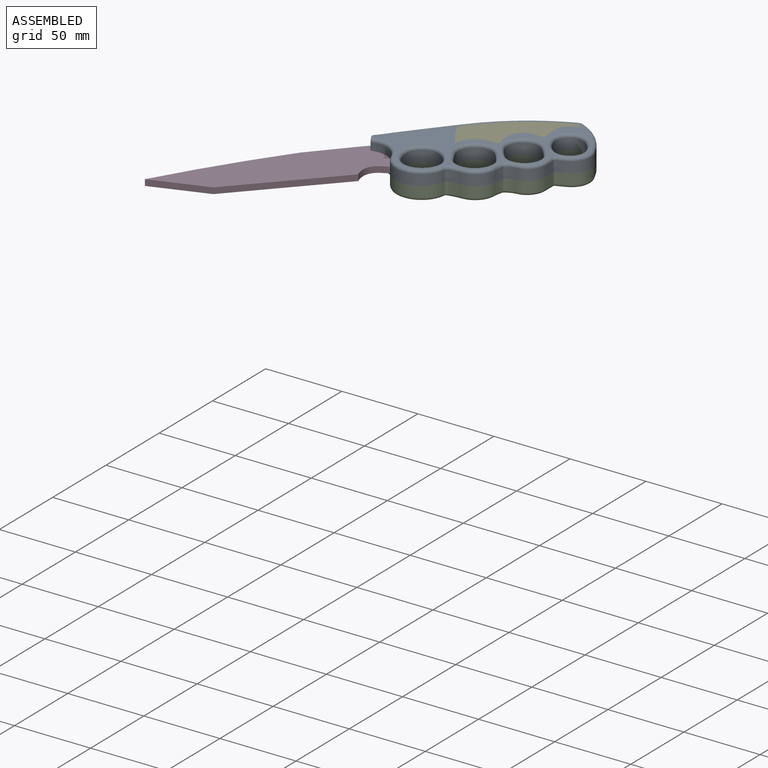
[diagram: assembled view]
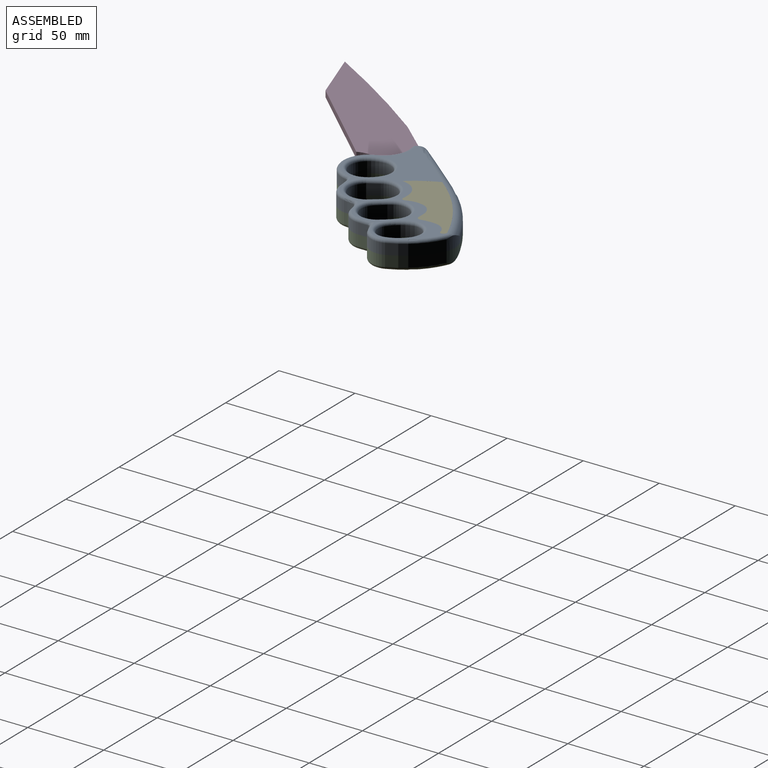
[diagram: assembled view, second angle]
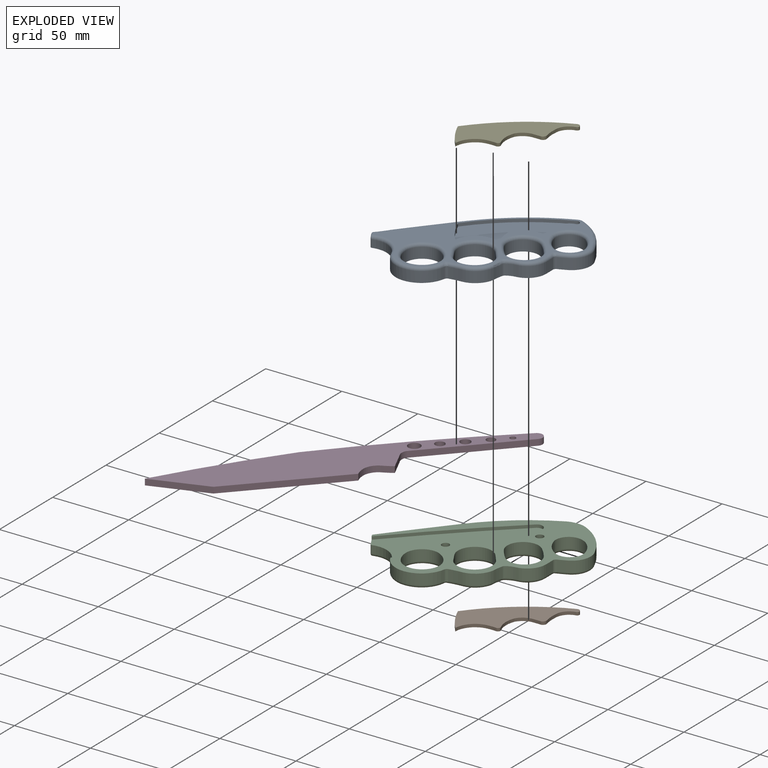
[diagram: exploded view]
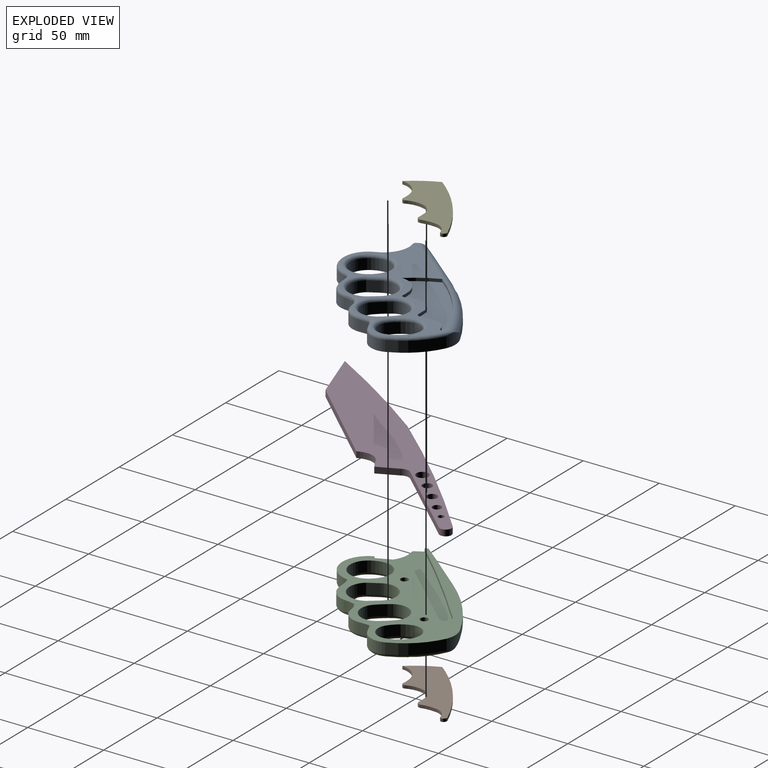
[diagram: exploded view, second angle]
ASSEMBLY  parts=5 mates=4
PART A: 103 faces, bbox 114.8x117.5x9.1 mm
  f0: plane 8x6.28mm, normal (-0.87,-0.5,0), area 42.2mm2, adj f47,f92,f93,f94,f95,f96,f97,f98
  f1: cylinder r=17.04mm len=32.74mm, axis (0,0,-1), area 310.1mm2, adj f9,f47,f52,f81,f87,f93
  f2: cylinder r=72.89mm len=7mm, axis (0,0,-1), area 35.9mm2, adj f3,f47,f58,f85
  f3: cylinder r=12.47mm len=17.98mm, axis (0,0,-1), area 151.7mm2, adj f2,f4,f47,f77
  f4: cylinder r=45.34mm len=22.87mm, axis (0,0,-1), area 227.4mm2, adj f3,f5,f47,f78
  f5: cylinder r=15.76mm len=12.4mm, axis (0,0,-1), area 84.9mm2, adj f4,f6,f47,f50,f78,f79
  f6: cylinder r=134.82mm len=44.95mm, axis (0,0,-1), area 230.9mm2, adj f5,f7,f47,f50
  f7: plane 17.66x14.51mm, normal (-0.77,0.63,0), area 91.4mm2, adj f6,f8,f47,f49
  f8: cylinder r=1203.37mm len=20.31mm, axis (0,0,-1), area 104.2mm2, adj f7,f47,f48,f94
  f9: cylinder r=16.13mm len=19.45mm, axis (0,0,-1), area 119.7mm2, adj f1,f51,f93,f98
  f10: cylinder r=56.96mm len=8.55mm, axis (0,0,-1), area 60.4mm2, adj f11,f47,f53,f81
  f11: cylinder r=13.8mm len=12.32mm, axis (0,0,-1), area 127.5mm2, adj f10,f12,f47,f54
  f12: cylinder r=33.82mm len=7mm, axis (0,0,-1), area 48.5mm2, adj f11,f47,f55,f83
  f13: cylinder r=12.96mm len=7mm, axis (0,0,-1), area 42.4mm2, adj f14,f47,f56,f83
  f14: cylinder r=12.42mm len=12.36mm, axis (0,0,-1), area 128.6mm2, adj f13,f45,f47,f57
  f15: cylinder r=20.1mm len=11.96mm, axis (0,0,-1), area 102.3mm2, adj f16,f40,f47,f74
  f16: cylinder r=8.81mm len=14.04mm, axis (0,0,-1), area 145.6mm2, adj f15,f17,f47,f72
  f17: cylinder r=20.38mm len=12.6mm, axis (0,0,-1), area 109.7mm2, adj f16,f18,f47,f73
  f18: cylinder r=8.67mm len=10.5mm, axis (0,0,-1), area 115.5mm2, adj f17,f40,f47,f75
  f19: cylinder r=27.49mm len=6.69mm, axis (0,0,-1), area 13.4mm2, adj f20,f41,f46,f80
  f20: cylinder r=13.39mm len=12.7mm, axis (0,0,-1), area 36.4mm2, adj f19,f21,f46,f80
  f21: cylinder r=69.06mm len=18.4mm, axis (0,0,-1), area 43.3mm2, adj f20,f22,f46,f80
  f22: cylinder r=124.67mm len=51.14mm, axis (0,0,-1), area 130.3mm2, adj f21,f23,f46,f80
  f23: cylinder r=2.26mm len=2.72mm, axis (0,0,-1), area 7mm2, adj f22,f24,f46,f80
  f24: cylinder r=1.54mm len=2mm, axis (0,0,-1), area 4.6mm2, adj f23,f25,f46,f80
  f25: cylinder r=9.06mm len=9.05mm, axis (0,0,-1), area 25.8mm2, adj f24,f26,f46,f80
  f26: cylinder r=25.48mm len=8.9mm, axis (0,0,-1), area 17.9mm2, adj f25,f27,f46,f80
  f27: cylinder r=2.34mm len=2.65mm, axis (0,0,-1), area 7.4mm2, adj f26,f28,f46,f80
  f28: cylinder r=64.64mm len=4.69mm, axis (0,0,-1), area 9.4mm2, adj f27,f29,f46,f80
  f29: cylinder r=10.14mm len=9.11mm, axis (0,0,-1), area 22mm2, adj f28,f30,f46,f80
  f30: cylinder r=17.13mm len=13.54mm, axis (0,0,-1), area 27.8mm2, adj f29,f41,f46,f80
  f31: cylinder r=15.74mm len=8.66mm, axis (0,0,-1), area 79.2mm2, adj f32,f42,f47,f61
  f32: cylinder r=11.55mm len=20.78mm, axis (0,0,-1), area 222.3mm2, adj f31,f33,f47,f60
  f33: cylinder r=16.3mm len=10.28mm, axis (0,0,-1), area 77.3mm2, adj f32,f42,f47,f62
  f34: cylinder r=38.33mm len=7mm, axis (0,0,-1), area 60.3mm2, adj f35,f43,f47,f67
  f35: cylinder r=10.48mm len=18.42mm, axis (0,0,-1), area 233.4mm2, adj f34,f36,f47,f65
  f36: cylinder r=46.66mm len=7.68mm, axis (0,0,-1), area 68.8mm2, adj f35,f43,f47,f64
  f37: plane 7x6.11mm, normal (-0.79,-0.61,0), area 54.2mm2, adj f38,f44,f47,f69
  f38: cylinder r=11.58mm len=20.67mm, axis (0,0,-1), area 244.4mm2, adj f37,f39,f47,f68
  f39: plane 7x6.81mm, normal (0.86,0.5,0), area 55.1mm2, adj f38,f44,f47,f70
  f40: cylinder r=13.87mm len=7mm, axis (0,0,-1), area 32.7mm2, adj f15,f18,f47,f76
  f41: cylinder r=1.62mm len=2mm, axis (0,0,-1), area 6.1mm2, adj f19,f30,f46,f80
  f42: cylinder r=10.73mm len=16.96mm, axis (0,0,-1), area 161mm2, adj f31,f33,f47,f63
  f43: cylinder r=10.31mm len=17.45mm, axis (0,0,-1), area 207.3mm2, adj f34,f36,f47,f66
  f44: cylinder r=11.05mm len=19.78mm, axis (0,0,-1), area 233.7mm2, adj f37,f39,f47,f71
  f45: cylinder r=383.02mm len=7mm, axis (0,0,-1), area 45.3mm2, adj f14,f47,f59,f85
  f46: plane 107.07x99.18mm, normal (0,0,1), area 1625.3mm2, adj f19,f20,f21,f22,f23,f24,f25,f26
  f47: plane 112.21x103.5mm, normal (0,0,-1), area 3257.6mm2, adj f0,f1,f2,f3,f4,f5,f6,f7
  f48: torus R=1198.37mm, axis (0,0,1), area 210.7mm2, adj f8,f46,f49,f95
  f49: cylinder r=5mm len=20.83mm, axis (0.63,0.77,0), area 179.5mm2, adj f7,f46,f48,f50
  f50: torus R=129.82mm, axis (0,0,1), area 488.6mm2, adj f5,f6,f46,f49,f79
  f51: torus R=18.13mm, axis (0,0,1), area 79mm2, adj f9,f46,f52,f97
  f52: torus R=15.04mm, axis (0,0,1), area 138.3mm2, adj f1,f46,f51,f82
  f53: torus R=58.96mm, axis (0,0,1), area 32mm2, adj f10,f46,f54,f82
  f54: torus R=11.8mm, axis (0,0,1), area 54mm2, adj f11,f46,f53,f55
  f55: torus R=35.82mm, axis (0,0,1), area 24.3mm2, adj f12,f46,f54,f84
  f56: torus R=14.96mm, axis (0,0,1), area 22.5mm2, adj f13,f46,f57,f84
  f57: torus R=10.42mm, axis (0,0,1), area 54.4mm2, adj f14,f46,f56,f59
  f58: torus R=70.89mm, axis (0,0,1), area 20.5mm2, adj f2,f46,f77,f86
  f59: torus R=381.02mm, axis (0,0,1), area 24.8mm2, adj f45,f46,f57,f86
  f60: torus R=13.55mm, axis (0,0,1), area 106.1mm2, adj f32,f46,f61,f62
  f61: torus R=17.74mm, axis (0,0,1), area 37.2mm2, adj f31,f46,f60,f63
  f62: torus R=18.3mm, axis (0,0,1), area 36.3mm2, adj f33,f46,f60,f63
  f63: torus R=12.73mm, axis (0,0,1), area 77.1mm2, adj f42,f46,f61,f62
  f64: torus R=48.66mm, axis (0,0,1), area 31.3mm2, adj f36,f46,f65,f66
  f65: torus R=12.48mm, axis (0,0,1), area 111.7mm2, adj f35,f46,f64,f67
  f66: torus R=12.31mm, axis (0,0,1), area 99.6mm2, adj f43,f46,f64,f67
  f67: torus R=40.33mm, axis (0,0,1), area 27.3mm2, adj f34,f46,f65,f66
  f68: torus R=13.58mm, axis (0,0,1), area 117mm2, adj f38,f46,f69,f70
  f69: cylinder r=2mm len=7.43mm, axis (-0.61,0.79,0), area 24.5mm2, adj f37,f46,f68,f71
  f70: cylinder r=2mm len=7.93mm, axis (0.5,-0.86,0), area 24.9mm2, adj f39,f46,f68,f71
  f71: torus R=13.05mm, axis (0,0,1), area 111.8mm2, adj f44,f46,f69,f70
  f72: torus R=10.81mm, axis (0,0,1), area 70.7mm2, adj f16,f46,f73,f74
  f73: torus R=22.38mm, axis (0,0,1), area 51.1mm2, adj f17,f46,f72,f75
  f74: torus R=22.1mm, axis (0,0,1), area 47.8mm2, adj f15,f46,f72,f76
  f75: torus R=10.67mm, axis (0,0,1), area 56.3mm2, adj f18,f46,f73,f76
  f76: torus R=15.87mm, axis (0,0,1), area 15.6mm2, adj f40,f46,f74,f75
  f77: torus R=10.47mm, axis (0,0,1), area 64.5mm2, adj f3,f46,f58,f78
  f78: torus R=43.34mm, axis (0,0,1), area 105.8mm2, adj f4,f5,f46,f77,f79
  f79: bspline ~4.69x3.44mm, area 4.2mm2, adj f5,f50,f78
  f80: plane 57.66x53.95mm, normal (0,0,1), area 1040.1mm2, adj f19,f20,f21,f22,f23,f24,f25,f26
  f81: cylinder r=2mm len=7mm, axis (0,0,-1), area 16.8mm2, adj f1,f10,f47,f82
  f82: bspline ~3.34x2.91mm, area 3.3mm2, adj f52,f53,f81
  f83: cylinder r=2mm len=7mm, axis (0,0,1), area 10.3mm2, adj f12,f13,f47,f84
  f84: bspline ~2.39x2.36mm, area 1.8mm2, adj f55,f56,f83
  f85: cylinder r=2mm len=7mm, axis (0,0,1), area 17mm2, adj f2,f45,f47,f86
  f86: bspline ~3.33x2.81mm, area 3.3mm2, adj f58,f59,f85
  f87: plane 2x1.96mm, normal (-0.52,0.86,0), area 4.6mm2, adj f1,f47,f88,f93
  f88: plane 12.92x5.89mm, normal (-0.91,-0.41,0), area 28.4mm2, adj f47,f87,f89,f93
  f89: cylinder r=6mm len=6.56mm, axis (0,0,-1), area 13.9mm2, adj f47,f88,f90,f93
  f90: plane 53.11x49.06mm, normal (-0.73,0.68,0), area 144.6mm2, adj f47,f89,f91,f93
  f91: cylinder r=3.82mm len=6.57mm, axis (0,0,-1), area 24.1mm2, adj f47,f90,f92,f93
  f92: cylinder r=1040.92mm len=63.66mm, axis (0,0,-1), area 179.2mm2, adj f0,f47,f91,f93
  f93: plane 80.35x70.16mm, normal (0,0,-1), area 1023.1mm2, adj f0,f1,f9,f87,f88,f89,f90,f91
  f94: cylinder r=1mm len=4mm, axis (0,0,-1), area 4.7mm2, adj f0,f8,f47,f95
  f95: bspline ~6.08x5.95mm, area 9.9mm2, adj f0,f48,f94,f96
  f96: cylinder r=1mm len=2.14mm, axis (-0.5,0.87,0), area 3mm2, adj f0,f46,f95,f97
  f97: bspline ~2.49x2.46mm, area 3.6mm2, adj f0,f51,f96,f98
  f98: cylinder r=1mm len=5mm, axis (0,0,-1), area 6.6mm2, adj f0,f9,f93,f97
  f99: cylinder r=2.5mm len=6mm, axis (0,0,-1), area 94.2mm2, adj f47,f100
  f100: plane 5x5mm, normal (0,0,-1), area 19.6mm2, adj f99
  f101: cylinder r=2.5mm len=6mm, axis (0,0,-1), area 94.2mm2, adj f47,f102
  f102: plane 5x5mm, normal (0,0,-1), area 19.6mm2, adj f101
PART B: 15 faces, bbox 54x57.7x2 mm
  f0: cylinder r=13.39mm len=12.7mm, axis (0,0,1), area 36.4mm2, adj f1,f12,f13,f14
  f1: cylinder r=69.06mm len=18.4mm, axis (0,0,1), area 43.3mm2, adj f0,f2,f13,f14
  f2: cylinder r=124.67mm len=51.14mm, axis (0,0,1), area 130.3mm2, adj f1,f3,f13,f14
  f3: cylinder r=2.26mm len=2.72mm, axis (0,0,1), area 7mm2, adj f2,f4,f13,f14
  f4: cylinder r=1.54mm len=2mm, axis (0,0,1), area 4.6mm2, adj f3,f5,f13,f14
  f5: cylinder r=9.06mm len=9.05mm, axis (0,0,1), area 25.8mm2, adj f4,f6,f13,f14
  f6: cylinder r=25.48mm len=8.9mm, axis (0,0,1), area 17.9mm2, adj f5,f7,f13,f14
  f7: cylinder r=2.34mm len=2.65mm, axis (0,0,1), area 7.4mm2, adj f6,f8,f13,f14
  f8: cylinder r=64.64mm len=4.69mm, axis (0,0,1), area 9.4mm2, adj f7,f9,f13,f14
  f9: cylinder r=10.14mm len=9.11mm, axis (0,0,1), area 22mm2, adj f8,f10,f13,f14
  f10: cylinder r=17.13mm len=13.54mm, axis (0,0,1), area 27.8mm2, adj f9,f11,f13,f14
  f11: cylinder r=1.62mm len=2mm, axis (0,0,1), area 6.1mm2, adj f10,f12,f13,f14
  f12: cylinder r=27.49mm len=6.69mm, axis (0,0,1), area 13.4mm2, adj f0,f11,f13,f14
  f13: plane 57.66x53.95mm, normal (0,0,-1), area 1040.1mm2, adj f0,f1,f2,f3,f4,f5,f6,f7
  f14: plane 57.66x53.95mm, normal (0,0,1), area 1040.1mm2, adj f0,f1,f2,f3,f4,f5,f6,f7
PART C: 103 faces, bbox 114.8x117.5x9.1 mm
  f0: cylinder r=16.13mm len=19.45mm, axis (0,0,1), area 119.7mm2, adj f16,f49,f64,f98
  f1: cylinder r=27.49mm len=6.69mm, axis (0,0,1), area 13.4mm2, adj f2,f41,f46,f48
  f2: cylinder r=13.39mm len=12.7mm, axis (0,0,1), area 36.4mm2, adj f1,f26,f46,f48
  f3: cylinder r=9.06mm len=9.05mm, axis (0,0,1), area 25.8mm2, adj f4,f29,f46,f48
  f4: cylinder r=25.48mm len=8.9mm, axis (0,0,1), area 17.9mm2, adj f3,f30,f46,f48
  f5: cylinder r=64.64mm len=4.69mm, axis (0,0,1), area 9.4mm2, adj f6,f30,f46,f48
  f6: cylinder r=10.14mm len=9.11mm, axis (0,0,1), area 22mm2, adj f5,f7,f46,f48
  f7: cylinder r=17.13mm len=13.54mm, axis (0,0,1), area 27.8mm2, adj f6,f41,f46,f48
  f8: cylinder r=72.89mm len=7mm, axis (0,0,1), area 35.9mm2, adj f9,f47,f75,f92
  f9: cylinder r=12.47mm len=17.98mm, axis (0,0,1), area 151.7mm2, adj f8,f10,f47,f74
  f10: cylinder r=45.34mm len=22.87mm, axis (0,0,1), area 227.4mm2, adj f9,f11,f47,f72
  f11: cylinder r=15.76mm len=12.4mm, axis (0,0,1), area 84.9mm2, adj f10,f12,f47,f58,f70,f72
  f12: cylinder r=134.82mm len=44.95mm, axis (0,0,1), area 230.9mm2, adj f11,f13,f47,f58
  f13: plane 17.66x14.51mm, normal (-0.77,0.63,0), area 91.4mm2, adj f12,f14,f47,f57
  f14: cylinder r=1203.37mm len=20.31mm, axis (0,0,1), area 104.2mm2, adj f13,f47,f56,f94
  f15: plane 8x6.28mm, normal (-0.87,-0.5,0), area 42.2mm2, adj f47,f49,f50,f94,f95,f96,f97,f98
  f16: cylinder r=17.04mm len=32.74mm, axis (0,0,1), area 310.1mm2, adj f0,f47,f49,f51,f65,f88
  f17: cylinder r=56.96mm len=8.55mm, axis (0,0,1), area 60.4mm2, adj f18,f47,f66,f88
  f18: cylinder r=13.8mm len=12.32mm, axis (0,0,1), area 127.5mm2, adj f17,f19,f47,f67
  f19: cylinder r=33.82mm len=7mm, axis (0,0,1), area 48.5mm2, adj f18,f47,f68,f90
  f20: cylinder r=12.96mm len=7mm, axis (0,0,1), area 42.4mm2, adj f21,f47,f69,f90
  f21: cylinder r=12.42mm len=12.36mm, axis (0,0,1), area 128.6mm2, adj f20,f45,f47,f71
  f22: cylinder r=20.1mm len=11.96mm, axis (0,0,1), area 102.3mm2, adj f23,f40,f47,f61
  f23: cylinder r=8.81mm len=14.04mm, axis (0,0,1), area 145.6mm2, adj f22,f24,f47,f59
  f24: cylinder r=20.38mm len=12.6mm, axis (0,0,1), area 109.7mm2, adj f23,f25,f47,f60
  f25: cylinder r=8.67mm len=10.5mm, axis (0,0,1), area 115.5mm2, adj f24,f40,f47,f62
  f26: cylinder r=69.06mm len=18.4mm, axis (0,0,1), area 43.3mm2, adj f2,f27,f46,f48
  f27: cylinder r=124.67mm len=51.14mm, axis (0,0,1), area 130.3mm2, adj f26,f28,f46,f48
  f28: cylinder r=2.26mm len=2.72mm, axis (0,0,1), area 7mm2, adj f27,f29,f46,f48
  f29: cylinder r=1.54mm len=2mm, axis (0,0,1), area 4.6mm2, adj f3,f28,f46,f48
  f30: cylinder r=2.34mm len=2.65mm, axis (0,0,1), area 7.4mm2, adj f4,f5,f46,f48
  f31: cylinder r=15.74mm len=8.66mm, axis (0,0,1), area 79.2mm2, adj f32,f42,f47,f77
  f32: cylinder r=11.55mm len=20.78mm, axis (0,0,1), area 222.3mm2, adj f31,f33,f47,f76
  f33: cylinder r=16.3mm len=10.28mm, axis (0,0,1), area 77.3mm2, adj f32,f42,f47,f78
  f34: cylinder r=38.33mm len=7mm, axis (0,0,1), area 60.3mm2, adj f35,f43,f47,f83
  f35: cylinder r=10.48mm len=18.42mm, axis (0,0,1), area 233.4mm2, adj f34,f36,f47,f81
  f36: cylinder r=46.66mm len=7.68mm, axis (0,0,1), area 68.8mm2, adj f35,f43,f47,f80
  f37: plane 7x6.11mm, normal (-0.79,-0.61,0), area 54.2mm2, adj f38,f44,f47,f85
  f38: cylinder r=11.58mm len=20.67mm, axis (0,0,1), area 244.4mm2, adj f37,f39,f47,f84
  f39: plane 7x6.81mm, normal (0.86,0.5,0), area 55.1mm2, adj f38,f44,f47,f86
  f40: cylinder r=13.87mm len=7mm, axis (0,0,1), area 32.7mm2, adj f22,f25,f47,f63
  f41: cylinder r=1.62mm len=2mm, axis (0,0,1), area 6.1mm2, adj f1,f7,f46,f48
  f42: cylinder r=10.73mm len=16.96mm, axis (0,0,1), area 161mm2, adj f31,f33,f47,f79
  f43: cylinder r=10.31mm len=17.45mm, axis (0,0,1), area 207.3mm2, adj f34,f36,f47,f82
  f44: cylinder r=11.05mm len=19.78mm, axis (0,0,1), area 233.7mm2, adj f37,f39,f47,f87
  f45: cylinder r=383.02mm len=7mm, axis (0,0,1), area 45.3mm2, adj f21,f47,f73,f92
  f46: plane 107.07x99.18mm, normal (0,0,-1), area 1625.3mm2, adj f1,f2,f3,f4,f5,f6,f7,f26
  f47: plane 112.21x103.5mm, normal (0,0,1), area 3257.6mm2, adj f8,f9,f10,f11,f12,f13,f14,f15
  f48: plane 57.66x53.95mm, normal (0,0,-1), area 1040.1mm2, adj f1,f2,f3,f4,f5,f6,f7,f26
  f49: plane 80.35x70.16mm, normal (0,0,1), area 1023.1mm2, adj f0,f15,f16,f50,f51,f52,f53,f54
  f50: cylinder r=1040.92mm len=63.66mm, axis (0,0,1), area 179.2mm2, adj f15,f47,f49,f55
  f51: plane 2x1.96mm, normal (-0.52,0.86,0), area 4.6mm2, adj f16,f47,f49,f52
  f52: plane 12.92x5.89mm, normal (-0.91,-0.41,0), area 28.4mm2, adj f47,f49,f51,f53
  f53: cylinder r=6mm len=6.56mm, axis (0,0,1), area 13.9mm2, adj f47,f49,f52,f54
  f54: plane 53.11x49.06mm, normal (-0.73,0.68,0), area 144.6mm2, adj f47,f49,f53,f55
  f55: cylinder r=3.82mm len=6.57mm, axis (0,0,1), area 24.1mm2, adj f47,f49,f50,f54
  f56: torus R=1198.37mm, axis (0,0,1), area 210.7mm2, adj f14,f46,f57,f95
  f57: cylinder r=5mm len=20.83mm, axis (0.63,0.77,0), area 179.5mm2, adj f13,f46,f56,f58
  f58: torus R=129.82mm, axis (0,0,1), area 488.6mm2, adj f11,f12,f46,f57,f70
  f59: torus R=10.81mm, axis (0,0,1), area 70.7mm2, adj f23,f46,f60,f61
  f60: torus R=22.38mm, axis (0,0,1), area 51.1mm2, adj f24,f46,f59,f62
  f61: torus R=22.1mm, axis (0,0,1), area 47.8mm2, adj f22,f46,f59,f63
  f62: torus R=10.67mm, axis (0,0,1), area 56.3mm2, adj f25,f46,f60,f63
  f63: torus R=15.87mm, axis (0,0,1), area 15.6mm2, adj f40,f46,f61,f62
  f64: torus R=18.13mm, axis (0,0,1), area 79mm2, adj f0,f46,f65,f97
  f65: torus R=15.04mm, axis (0,0,1), area 138.3mm2, adj f16,f46,f64,f89
  f66: torus R=58.96mm, axis (0,0,1), area 32mm2, adj f17,f46,f67,f89
  f67: torus R=11.8mm, axis (0,0,1), area 54mm2, adj f18,f46,f66,f68
  f68: torus R=35.82mm, axis (0,0,1), area 24.3mm2, adj f19,f46,f67,f91
  f69: torus R=14.96mm, axis (0,0,1), area 22.5mm2, adj f20,f46,f71,f91
  f70: bspline ~4.69x3.44mm, area 4.2mm2, adj f11,f58,f72
  f71: torus R=10.42mm, axis (0,0,1), area 54.4mm2, adj f21,f46,f69,f73
  f72: torus R=43.34mm, axis (0,0,1), area 105.8mm2, adj f10,f11,f46,f70,f74
  f73: torus R=381.02mm, axis (0,0,1), area 24.8mm2, adj f45,f46,f71,f93
  f74: torus R=10.47mm, axis (0,0,1), area 64.5mm2, adj f9,f46,f72,f75
  f75: torus R=70.89mm, axis (0,0,1), area 20.5mm2, adj f8,f46,f74,f93
  f76: torus R=13.55mm, axis (0,0,1), area 106.1mm2, adj f32,f46,f77,f78
  f77: torus R=17.74mm, axis (0,0,1), area 37.2mm2, adj f31,f46,f76,f79
  f78: torus R=18.3mm, axis (0,0,1), area 36.3mm2, adj f33,f46,f76,f79
  f79: torus R=12.73mm, axis (0,0,1), area 77.1mm2, adj f42,f46,f77,f78
  f80: torus R=48.66mm, axis (0,0,1), area 31.3mm2, adj f36,f46,f81,f82
  f81: torus R=12.48mm, axis (0,0,1), area 111.7mm2, adj f35,f46,f80,f83
  f82: torus R=12.31mm, axis (0,0,1), area 99.6mm2, adj f43,f46,f80,f83
  f83: torus R=40.33mm, axis (0,0,1), area 27.3mm2, adj f34,f46,f81,f82
  f84: torus R=13.58mm, axis (0,0,1), area 117mm2, adj f38,f46,f85,f86
  f85: cylinder r=2mm len=7.43mm, axis (-0.61,0.79,0), area 24.5mm2, adj f37,f46,f84,f87
  f86: cylinder r=2mm len=7.93mm, axis (0.5,-0.86,0), area 24.9mm2, adj f39,f46,f84,f87
  f87: torus R=13.05mm, axis (0,0,1), area 111.8mm2, adj f44,f46,f85,f86
  f88: cylinder r=2mm len=7mm, axis (0,0,1), area 16.8mm2, adj f16,f17,f47,f89
  f89: bspline ~3.34x2.91mm, area 3.3mm2, adj f65,f66,f88
  f90: cylinder r=2mm len=7mm, axis (0,0,-1), area 10.3mm2, adj f19,f20,f47,f91
  f91: bspline ~2.39x2.36mm, area 1.8mm2, adj f68,f69,f90
  f92: cylinder r=2mm len=7mm, axis (0,0,-1), area 17mm2, adj f8,f45,f47,f93
  f93: bspline ~3.33x2.81mm, area 3.3mm2, adj f73,f75,f92
  f94: cylinder r=1mm len=4mm, axis (0,0,1), area 4.7mm2, adj f14,f15,f47,f95
  f95: bspline ~6.08x5.95mm, area 9.9mm2, adj f15,f56,f94,f96
  f96: cylinder r=1mm len=2.14mm, axis (-0.5,0.87,0), area 3mm2, adj f15,f46,f95,f97
  f97: bspline ~2.45x2.17mm, area 3.6mm2, adj f15,f64,f96,f98
  f98: cylinder r=1mm len=5mm, axis (0,0,1), area 6.6mm2, adj f0,f15,f49,f97
  f99: cylinder r=2.5mm len=6mm, axis (0,0,1), area 94.2mm2, adj f47,f100
  f100: plane 5x5mm, normal (0,0,1), area 19.6mm2, adj f99
  f101: cylinder r=2.5mm len=6mm, axis (0,0,1), area 94.2mm2, adj f47,f102
  f102: plane 5x5mm, normal (0,0,1), area 19.6mm2, adj f101
PART D: 19 faces, bbox 145.6x169.3x4 mm
  f0: cylinder r=14.88mm len=5.79mm, axis (0,0,-1), area 24mm2, adj f1,f15,f17,f18
  f1: cylinder r=9.91mm len=9.76mm, axis (0,0,-1), area 47.4mm2, adj f0,f2,f17,f18
  f2: cylinder r=43.08mm len=4.58mm, axis (0,0,-1), area 20.7mm2, adj f1,f3,f17,f18
  f3: plane 4x2.02mm, normal (0.52,-0.86,0), area 9.4mm2, adj f2,f4,f17,f18
  f4: plane 12.92x5.89mm, normal (0.91,0.41,0), area 56.8mm2, adj f3,f5,f17,f18
  f5: cylinder r=6mm len=6.56mm, axis (0,0,-1), area 27.8mm2, adj f4,f6,f17,f18
  f6: plane 53.11x49.06mm, normal (0.73,-0.68,0), area 289.2mm2, adj f5,f7,f17,f18
  f7: cylinder r=3.82mm len=6.57mm, axis (0,0,-1), area 48.2mm2, adj f6,f8,f17,f18
  f8: cylinder r=1040.92mm len=92.76mm, axis (0,0,-1), area 517.8mm2, adj f7,f9,f17,f18
  f9: cylinder r=786.13mm len=75.49mm, axis (0,0,-1), area 359.9mm2, adj f8,f10,f17,f18
  f10: plane 36.18x12.61mm, normal (0.33,-0.94,0), area 153.3mm2, adj f9,f15,f17,f18
  f11: cylinder r=3.14mm len=6.27mm, axis (0,0,-1), area 78.8mm2, adj f17,f18
  f12: cylinder r=3.3mm len=6.61mm, axis (0,0,-1), area 83.1mm2, adj f17,f18
  f13: cylinder r=2.88mm len=5.75mm, axis (0,0,-1), area 72.3mm2, adj f17,f18
  f14: cylinder r=1.87mm len=4mm, axis (0,0,-1), area 47mm2, adj f17,f18
  f15: plane 58.39x54.44mm, normal (0.73,-0.68,0), area 319.3mm2, adj f0,f10,f17,f18
  f16: cylinder r=3.94mm len=7.88mm, axis (0,0,-1), area 99mm2, adj f17,f18
  f17: plane 169.34x145.55mm, normal (0,0,1), area 4285mm2, adj f0,f1,f2,f3,f4,f5,f6,f7
  f18: plane 169.34x145.55mm, normal (0,0,-1), area 4285mm2, adj f0,f1,f2,f3,f4,f5,f6,f7
PART E: 15 faces, bbox 54x57.7x2 mm
  f0: cylinder r=13.39mm len=12.7mm, axis (0,0,-1), area 36.4mm2, adj f1,f12,f13,f14
  f1: cylinder r=27.49mm len=6.69mm, axis (0,0,-1), area 13.4mm2, adj f0,f2,f13,f14
  f2: cylinder r=1.62mm len=2mm, axis (0,0,-1), area 6.1mm2, adj f1,f3,f13,f14
  f3: cylinder r=17.13mm len=13.54mm, axis (0,0,-1), area 27.8mm2, adj f2,f4,f13,f14
  f4: cylinder r=10.14mm len=9.11mm, axis (0,0,-1), area 22mm2, adj f3,f5,f13,f14
  f5: cylinder r=64.64mm len=4.69mm, axis (0,0,-1), area 9.4mm2, adj f4,f6,f13,f14
  f6: cylinder r=2.34mm len=2.65mm, axis (0,0,-1), area 7.4mm2, adj f5,f7,f13,f14
  f7: cylinder r=25.48mm len=8.9mm, axis (0,0,-1), area 17.9mm2, adj f6,f8,f13,f14
  f8: cylinder r=9.06mm len=9.05mm, axis (0,0,-1), area 25.8mm2, adj f7,f9,f13,f14
  f9: cylinder r=1.54mm len=2mm, axis (0,0,-1), area 4.6mm2, adj f8,f10,f13,f14
  f10: cylinder r=2.26mm len=2.72mm, axis (0,0,-1), area 7mm2, adj f9,f11,f13,f14
  f11: cylinder r=124.67mm len=51.14mm, axis (0,0,-1), area 130.3mm2, adj f10,f12,f13,f14
  f12: cylinder r=69.06mm len=18.4mm, axis (0,0,-1), area 43.3mm2, adj f0,f11,f13,f14
  f13: plane 57.66x53.95mm, normal (0,0,1), area 1040.1mm2, adj f0,f1,f2,f3,f4,f5,f6,f7
  f14: plane 57.66x53.95mm, normal (0,0,-1), area 1040.1mm2, adj f0,f1,f2,f3,f4,f5,f6,f7
PLACE A t=(-0.21,-1.16,-9.96)mm
PLACE B t=(-0.21,-1.16,-9.96)mm
PLACE C t=(-0.21,-1.16,-9.96)mm
PLACE D t=(-0.21,-1.16,-9.96)mm fixed
PLACE E t=(-0.21,-1.16,-9.96)mm
MATE fastened C.f29 <-> B.f4  axis (0,0,-1) through (71.61,83.01,-16.96)mm
MATE fastened A.f23 <-> E.f10  axis (0,0,1) through (70.89,82.92,-2.96)mm
MATE fastened D.f7 <-> C.f55  axis (0,0,-1) through (52.98,71.8,-11.96)mm
MATE fastened A.f91 <-> D.f7  axis (0,0,-1) through (52.98,71.8,-7.96)mm
